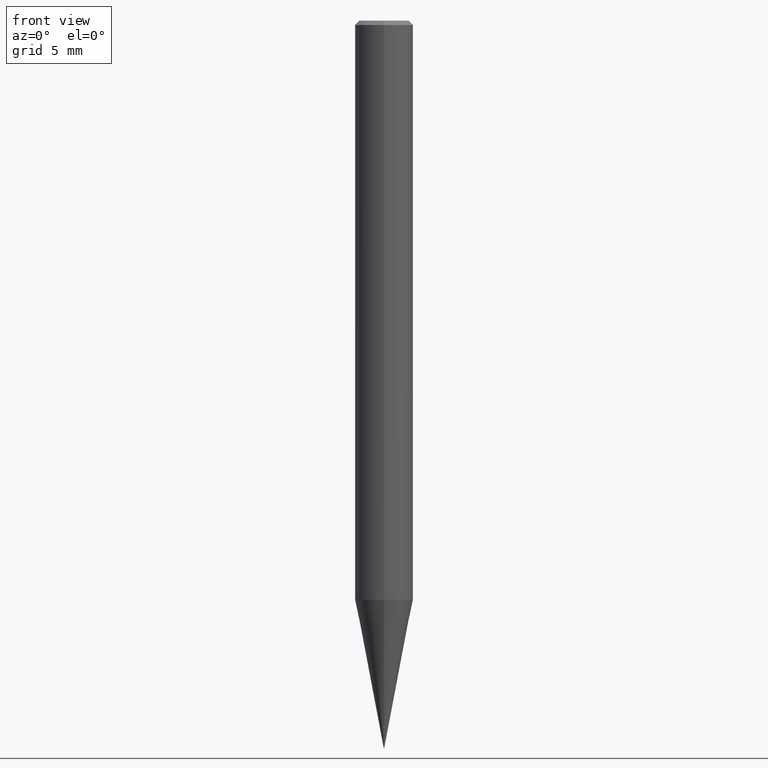
[diagram: clean part render]
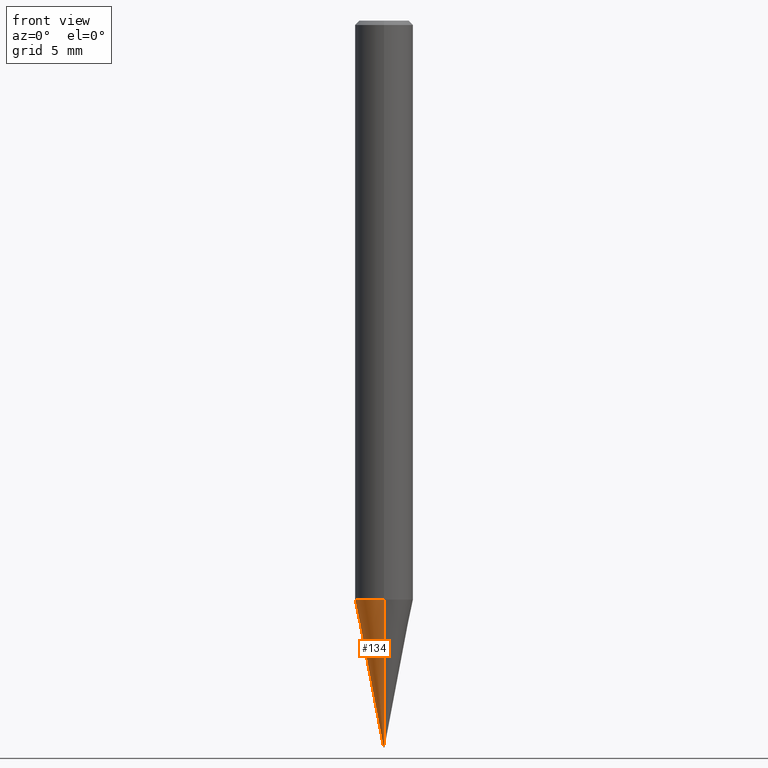
[diagram: same view with one face highlighted and labeled with its STEP entity id]
A machine part, front view. The second image highlights one B-rep face of the part: STEP entity #134.
In plain terms, the highlighted conical surface has half-angle 11 deg.
Its self-contained STEP definition (entity closure, byte-faithful):
#96=VERTEX_POINT('',#221);
#104=EDGE_CURVE('',#122,#96,#229,.T.);
#108=EDGE_CURVE('',#96,#176,#233,.T.);
#114=EDGE_CURVE('',#140,#122,#241,.T.);
#122=VERTEX_POINT('',#250);
#134=ADVANCED_FACE('',(#265),#266,.T.);
#140=VERTEX_POINT('',#272);
#150=EDGE_CURVE('',#140,#176,#282,.T.);
#176=VERTEX_POINT('',#313);
#221=CARTESIAN_POINT('',(0.0,1.99995,-39.837));
#229=CIRCLE('',#367,1.99995);
#233=LINE('',#373,#374);
#241=LINE('',#383,#384);
#250=CARTESIAN_POINT('',(2.44915147732706E-016,-1.99995,-39.837));
#265=FACE_OUTER_BOUND('',#411,.T.);
#266=CONICAL_SURFACE('',#412,1.01995,0.191992271145669);
#272=CARTESIAN_POINT('',(4.89230238352041E-018,-0.03995,-49.92));
#282=CIRCLE('',#434,0.03995);
#313=CARTESIAN_POINT('',(0.0,0.03995,-49.92));
#367=AXIS2_PLACEMENT_3D('',#501,#502,#503);
#373=CARTESIAN_POINT('',(-1.24903725058113E-016,1.01995,-44.8785));
#374=VECTOR('',#507,1.0);
#383=CARTESIAN_POINT('',(1.24903725058113E-016,-1.01995,-44.8785));
#384=VECTOR('',#520,1.0);
#411=EDGE_LOOP('',(#559,#560,#561,#562));
#412=AXIS2_PLACEMENT_3D('',#563,#564,#565);
#434=AXIS2_PLACEMENT_3D('',#571,#572,#573);
#501=CARTESIAN_POINT('',(0.0,0.0,-39.837));
#502=DIRECTION('',(0.0,0.0,-1.0));
#503=DIRECTION('',(0.0,1.0,0.0));
#507=DIRECTION('',(2.3367318496573E-017,-0.190814937580851,-0.981626028381489));
#520=DIRECTION('',(2.3367318496573E-017,-0.190814937580851,0.981626028381489));
#559=ORIENTED_EDGE('',*,*,#108,.T.);
#560=ORIENTED_EDGE('',*,*,#150,.F.);
#561=ORIENTED_EDGE('',*,*,#114,.T.);
#562=ORIENTED_EDGE('',*,*,#104,.T.);
#563=CARTESIAN_POINT('',(0.0,0.0,-44.8785));
#564=DIRECTION('',(-0.0,-0.0,1.0));
#565=DIRECTION('',(0.0,1.0,0.0));
#571=CARTESIAN_POINT('',(0.0,0.0,-49.92));
#572=DIRECTION('',(0.0,0.0,-1.0));
#573=DIRECTION('',(0.0,1.0,0.0));